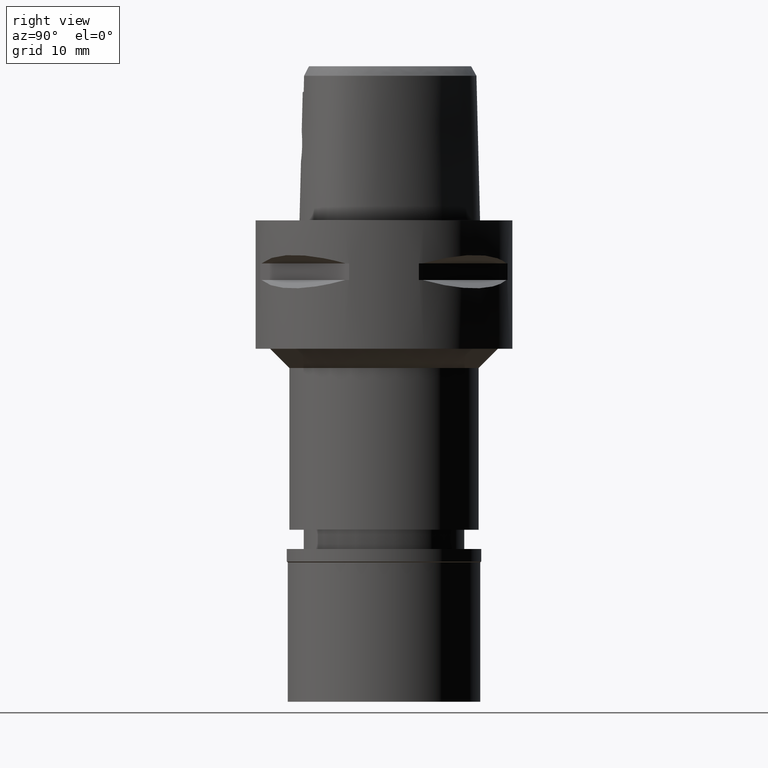
[diagram: clean part render]
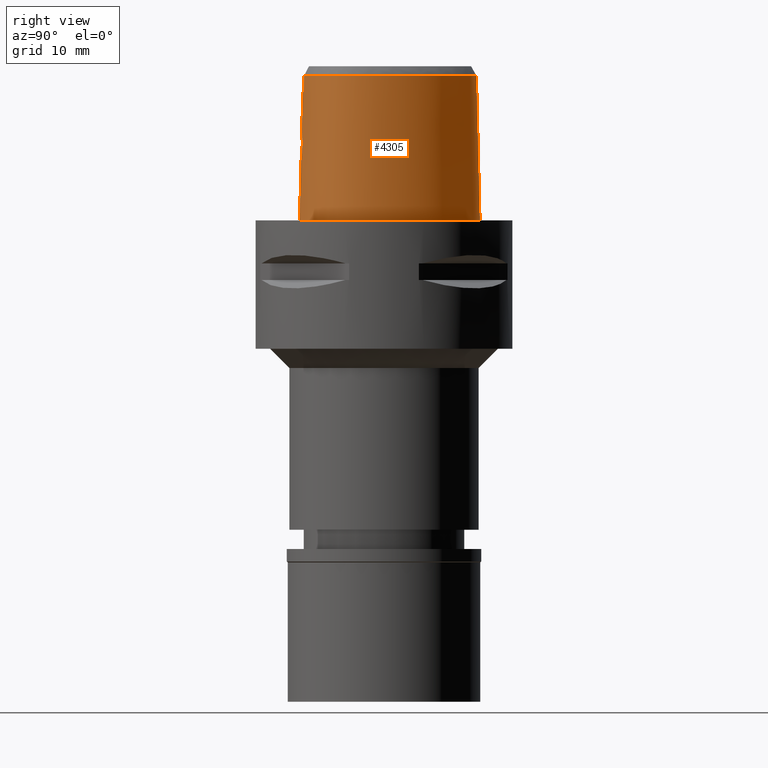
[diagram: same view with one face highlighted and labeled with its STEP entity id]
A machine part, right view. The second image highlights one B-rep face of the part: STEP entity #4305.
In plain terms, the highlighted face is a freeform B-spline surface patch.
Its self-contained STEP definition (entity closure, byte-faithful):
#26 = B_SPLINE_CURVE_WITH_KNOTS ( 'NONE', 3,
 ( #218, #4554, #2368, #3888 ),
 .UNSPECIFIED., .F., .F.,
 ( 4, 4 ),
 ( 0.0000000000000000000, 1.000000000000000000 ),
 .UNSPECIFIED. ) ;
#50 = CARTESIAN_POINT ( 'NONE',  ( 4.043386006612158745, -12.92392499374926551, 2.526500758007633324E-07 ) ) ;
#80 = FACE_OUTER_BOUND ( 'NONE', #2243, .T. ) ;
#118 = CARTESIAN_POINT ( 'NONE',  ( 1.591641127645536224, -12.86067053571080443, 9.839636682121154720 ) ) ;
#142 = CARTESIAN_POINT ( 'NONE',  ( 1.362992585940647317, -12.88053689247975520, 9.645493491656447205 ) ) ;
#154 = CARTESIAN_POINT ( 'NONE',  ( 1.394480076285999966E-10, 14.96299999995999919, 2.763345108291999988E-13 ) ) ;
#155 = CARTESIAN_POINT ( 'NONE',  ( -0.5714334898926000106, -12.77845914851000053, 15.16397847785000152 ) ) ;
#164 = CARTESIAN_POINT ( 'NONE',  ( 2.174655026127970903, -12.75097664368962036, 12.25065586503894011 ) ) ;
#178 = CARTESIAN_POINT ( 'NONE',  ( 9.167105020119999281, -10.63410057091000027, 15.16397847785000152 ) ) ;
#190 = CARTESIAN_POINT ( 'NONE',  ( 1.989864840159478510, -12.81604061845431275, 10.34408982141710176 ) ) ;
#201 = CARTESIAN_POINT ( 'NONE',  ( 11.17307789508999960, 6.450792918115999974, 15.16397847785000152 ) ) ;
#213 = CARTESIAN_POINT ( 'NONE',  ( 0.8145125421449325165, -12.91457943454070012, 9.348898823461938790 ) ) ;
#214 = ORIENTED_EDGE ( 'NONE', *, *, #877, .T. ) ;
#218 = CARTESIAN_POINT ( 'NONE',  ( 2.603594716343999860, -12.50959097760000027, 20.00000007790999845 ) ) ;
#221 = CARTESIAN_POINT ( 'NONE',  ( -6.592671780620999136E-11, 14.40001989798000182, 22.52071729252999788 ) ) ;
#224 = CARTESIAN_POINT ( 'NONE',  ( 13.18504591253999969, -5.572791088329999809, 22.97117531794000200 ) ) ;
#226 = CARTESIAN_POINT ( 'NONE',  ( 13.44334616193090604, -0.2854647381888218427, 22.52071729251869669 ) ) ;
#246 = CARTESIAN_POINT ( 'NONE',  ( 13.59718092439000081, -2.623279431512000048, 22.97117531794000200 ) ) ;
#248 = CARTESIAN_POINT ( 'NONE',  ( 1.745775296001682797, -12.61172358491222134, 20.00000039696022469 ) ) ;
#249 = B_SPLINE_CURVE_WITH_KNOTS ( 'NONE', 3,
 ( #1802, #1726, #339, #3166 ),
 .UNSPECIFIED., .F., .F.,
 ( 4, 4 ),
 ( 0.0000000000000000000, 1.000000000000000000 ),
 .UNSPECIFIED. ) ;
#270 = CARTESIAN_POINT ( 'NONE',  ( 12.81132626630000004, -7.396622668281000124, 7.356781637771000248 ) ) ;
#272 = CARTESIAN_POINT ( 'NONE',  ( 12.06912915025522715, -7.841969071234745847, 22.52071729251869669 ) ) ;
#293 = CARTESIAN_POINT ( 'NONE',  ( 3.534957314606000267, 13.66895477957999994, 22.97117531794000200 ) ) ;
#303 = CARTESIAN_POINT ( 'NONE',  ( 0.2807011223801613164, -12.81802318095999738, 13.79999999999999716 ) ) ;
#313 = CARTESIAN_POINT ( 'NONE',  ( 1.513572646535999988, 14.28153451507000149, 22.97117531794000200 ) ) ;
#339 = CARTESIAN_POINT ( 'NONE',  ( -4.220913122212817635E-09, -12.76635998233964564, 15.86666680636536064 ) ) ;
#362 = VERTEX_POINT ( 'NONE', #1311 ) ;
#410 = CARTESIAN_POINT ( 'NONE',  ( 11.50301489622497186, 6.641268746825714331, 2.526500758007633324E-07 ) ) ;
#455 = CARTESIAN_POINT ( 'NONE',  ( 9.170754357884419505, 9.963637495905267372, 2.526500758007633324E-07 ) ) ;
#459 = DIRECTION ( 'NONE',  ( 9.116520661892149065E-12, 0.02499051293209040084, -0.9996876883624159493 ) ) ;
#463 = CARTESIAN_POINT ( 'NONE',  ( 1.048704672019000084, -13.00466327240000020, 7.356781637771000248 ) ) ;
#476 = B_SPLINE_CURVE_WITH_KNOTS ( 'NONE', 3,
 ( #4414, #2203, #50, #808, #1127, #3023, #4081, #4483, #2616, #3668, #2253, #760, #2645, #1559, #1533, #410, #455, #1870, #3331, #4435, #4122, #1149 ),
 .UNSPECIFIED., .F., .F.,
 ( 4, 1, 1, 1, 1, 1, 1, 1, 1, 1, 1, 1, 1, 1, 1, 1, 1, 1, 1, 4 ),
 ( 0.0000000000000000000, 0.08333333333314001112, 0.1666666666663000063, 0.2083333333328000192, 0.2499999999994000077, 0.2916666666659999962, 0.3124999999992999489, 0.3333333333325000369, 0.3541666666659000207, 0.3749999999990999977, 0.4166666666657000140, 0.4583333333321999992, 0.4999999999987999599, 0.5833333333318999614, 0.6666666666650999939, 0.7499999999983000265, 0.8333333333314000280, 0.9166666666646000605, 0.9583333333311000457, 1.000000000000000000 ),
 .UNSPECIFIED. ) ;
#500 = CARTESIAN_POINT ( 'NONE',  ( 0.7506047745461016385, -12.91741682039676498, 9.325319817459758909 ) ) ;
#515 = VERTEX_POINT ( 'NONE', #684 ) ;
#519 = CARTESIAN_POINT ( 'NONE',  ( 1.493711519974093127, -12.86960986600499623, 9.750504243735724330 ) ) ;
#534 = CARTESIAN_POINT ( 'NONE',  ( 7.165542349958999857, -12.04243711645999859, -0.4504152023125000404 ) ) ;
#559 = CARTESIAN_POINT ( 'NONE',  ( 13.74837363990999961, -5.739794813218999536, -0.4504152023125000404 ) ) ;
#572 = CARTESIAN_POINT ( 'NONE',  ( 2.299158587325217606, -12.75906338818680652, 11.42842241198872344 ) ) ;
#584 = CARTESIAN_POINT ( 'NONE',  ( 3.976337289475999626, -12.54865315626000033, 15.16397847785000152 ) ) ;
#606 = CARTESIAN_POINT ( 'NONE',  ( 10.57640493824999872, -9.688930315331999665, 15.16397847785000152 ) ) ;
#608 = CARTESIAN_POINT ( 'NONE',  ( 6.968888527418841683, -11.49954675151481887, 22.52071729251869669 ) ) ;
#628 = CARTESIAN_POINT ( 'NONE',  ( 11.34294645296000148, 6.548859683045999525, 7.356781637771000248 ) ) ;
#638 = CARTESIAN_POINT ( 'NONE',  ( 1.408052784000375146, -12.78604258398209836, 13.32559425419504784 ) ) ;
#669 = ORIENTED_EDGE ( 'NONE', *, *, #1236, .F. ) ;
#671 = CARTESIAN_POINT ( 'NONE',  ( 2.568703243657000090, -12.45023755174000080, 22.52071758139999957 ) ) ;
#676 = CARTESIAN_POINT ( 'NONE',  ( -1.260417588442999891E-08, -12.66301535847000004, 19.99999996345999875 ) ) ;
#684 = CARTESIAN_POINT ( 'NONE',  ( 2.603594716343999860, -12.50959097760000027, 20.00000007790999845 ) ) ;
#741 = CARTESIAN_POINT ( 'NONE',  ( 1.553816202958000048, 14.47371249034000051, 15.16397847785000152 ) ) ;
#760 = CARTESIAN_POINT ( 'NONE',  ( 14.05597388958097227, -4.368733592854009196, 2.526500758007633324E-07 ) ) ;
#769 = CARTESIAN_POINT ( 'NONE',  ( -0.5664558463247999498, -12.58333782780000121, 22.97117531794000200 ) ) ;
#808 = CARTESIAN_POINT ( 'NONE',  ( 7.161686383303010217, -12.03179218152801155, 2.526500758007633324E-07 ) ) ;
#812 = LINE ( 'NONE', #4085, #1796 ) ;
#838 = CARTESIAN_POINT ( 'NONE',  ( -0.8491476913701000440, -12.57247826688000103, 22.97117531794000200 ) ) ;
#839 = EDGE_CURVE ( 'NONE', #3694, #2730, #3406, .T. ) ;
#850 = CARTESIAN_POINT ( 'NONE',  ( 1.107777221481571761, -12.89898952628355921, 9.478752576675020691 ) ) ;
#874 = CARTESIAN_POINT ( 'NONE',  ( 2.283291726770522168, -12.76615336162676329, 11.21397804798649389 ) ) ;
#877 = EDGE_CURVE ( 'NONE', #515, #3476, #1908, .T. ) ;
#880 = VERTEX_POINT ( 'NONE', #4653 ) ;
#886 = CARTESIAN_POINT ( 'NONE',  ( 6.379661312701999876, 12.67792013516999994, -0.4504152023125000404 ) ) ;
#895 = CARTESIAN_POINT ( 'NONE',  ( 2.080890816681221445, -12.75405392847548569, 12.48689062667896188 ) ) ;
#911 = CARTESIAN_POINT ( 'NONE',  ( 13.48500886106999985, -4.287290226620999789, 22.97117531794000200 ) ) ;
#923 = CARTESIAN_POINT ( 'NONE',  ( 1.607887411604793204, -12.85912041386440130, 9.855364509025404729 ) ) ;
#938 = CARTESIAN_POINT ( 'NONE',  ( 12.21811952688999980, -7.950323109321000281, 15.16397847785000152 ) ) ;
#940 = CARTESIAN_POINT ( 'NONE',  ( 11.42690036410471421, -8.639965949823194435, 22.52071729251869669 ) ) ;
#952 = CARTESIAN_POINT ( 'NONE',  ( 1.298081316895669524, -12.88549019284528008, 9.599832172041310230 ) ) ;
#963 = CARTESIAN_POINT ( 'NONE',  ( 13.79295346137999978, -2.621895082240000008, 15.16397847785000152 ) ) ;
#966 = CARTESIAN_POINT ( 'NONE',  ( 13.49620531830773196, -4.288887307215817124, 22.52071729251869669 ) ) ;
#974 = CARTESIAN_POINT ( 'NONE',  ( 0.0000000000000000000, -12.81802318095999915, 13.79999999999999893 ) ) ;
#984 = CARTESIAN_POINT ( 'NONE',  ( 4.010857421645999565, -12.74186242233999877, 7.356781637771000248 ) ) ;
#996 = CARTESIAN_POINT ( 'NONE',  ( 0.8913097515742632870, -12.80479973338801969, 13.62029918993368582 ) ) ;
#1019 = CARTESIAN_POINT ( 'NONE',  ( 0.9381876973383260765, -12.80340306008582196, 13.60008248094646888 ) ) ;
#1032 = CARTESIAN_POINT ( 'NONE',  ( 1.515894610912111418, 14.29262276006360288, 22.52071729251869669 ) ) ;
#1068 = CARTESIAN_POINT ( 'NONE',  ( 1.706514786404052630, -12.77195056588757538, 13.04216762706118793 ) ) ;
#1104 = CARTESIAN_POINT ( 'NONE',  ( -0.3063166189304000198, 14.96966816928999933, -0.4504152023125000404 ) ) ;
#1127 = CARTESIAN_POINT ( 'NONE',  ( 9.354901130079113614, -10.96475155699884496, 2.526500758007633324E-07 ) ) ;
#1133 = LINE ( 'NONE', #3950, #2016 ) ;
#1146 = ORIENTED_EDGE ( 'NONE', *, *, #2736, .T. ) ;
#1149 = CARTESIAN_POINT ( 'NONE',  ( 1.394480076285999966E-10, 14.96299999995999919, 2.763345108291999988E-13 ) ) ;
#1214 = CARTESIAN_POINT ( 'NONE',  ( 1.777128131591720228, -12.76853727841390196, 12.96066480105116270 ) ) ;
#1236 = EDGE_CURVE ( 'NONE', #3163, #880, #1812, .T. ) ;
#1241 = CARTESIAN_POINT ( 'NONE',  ( 0.1433742188724518862, -12.93301545397000396, 9.200000000000001066 ) ) ;
#1252 = CARTESIAN_POINT ( 'NONE',  ( 13.35152084735999978, -6.764911734801000165, -0.4504152023125000404 ) ) ;
#1267 = CARTESIAN_POINT ( 'NONE',  ( 2.300118713600481701, -12.75356737073905400, 11.64310838016456806 ) ) ;
#1278 = CARTESIAN_POINT ( 'NONE',  ( 12.98066718321000046, -7.494391692503000968, -0.4504152023125000404 ) ) ;
#1290 = CARTESIAN_POINT ( 'NONE',  ( 2.138891804679723396, -12.75204249368168163, 12.34575813156915736 ) ) ;
#1302 = CARTESIAN_POINT ( 'NONE',  ( 13.56059773079000053, -5.684126904923000545, 7.356781637771000248 ) ) ;
#1311 = CARTESIAN_POINT ( 'NONE',  ( -5.535627304009999517E-14, -13.16299999999999848, 2.757423918827000113E-13 ) ) ;
#1314 = CARTESIAN_POINT ( 'NONE',  ( 1.869424949172659778, -12.83134063688184057, 10.15811452068828658 ) ) ;
#1327 = CARTESIAN_POINT ( 'NONE',  ( 13.37282182166000055, -5.628458996625999688, 15.16397847785000152 ) ) ;
#1351 = CARTESIAN_POINT ( 'NONE',  ( 12.67101813038000024, 2.764037841997999845, 22.97117531794000200 ) ) ;
#1353 = CARTESIAN_POINT ( 'NONE',  ( 12.82590900890547481, -6.531187914406349826, 22.52071729251869669 ) ) ;
#1361 = CARTESIAN_POINT ( 'NONE',  ( 1.645449367504334903, -12.77488553661844328, 13.10705414946518665 ) ) ;
#1465 = CARTESIAN_POINT ( 'NONE',  ( 3.786921845533000042, 14.20422968569999966, -0.4504152023125000404 ) ) ;
#1489 = ORIENTED_EDGE ( 'NONE', *, *, #839, .T. ) ;
#1533 = CARTESIAN_POINT ( 'NONE',  ( 13.21414036448892482, 2.960287497841726623, 2.526500758007633324E-07 ) ) ;
#1559 = CARTESIAN_POINT ( 'NONE',  ( 14.00068087391712268, -0.1863062511124849441, 2.526500758007633324E-07 ) ) ;
#1567 = CARTESIAN_POINT ( 'NONE',  ( -0.8715805126474999165, -13.15757746668999850, -0.4504152023125000404 ) ) ;
#1576 = CARTESIAN_POINT ( 'NONE',  ( 1.900109215926363948, -12.76256732845277675, 12.79816543667886819 ) ) ;
#1601 = CARTESIAN_POINT ( 'NONE',  ( 2.186354490230978609, -12.78715814037339626, 10.76765892241432709 ) ) ;
#1627 = CARTESIAN_POINT ( 'NONE',  ( 2.151238930190031429, -12.75164808129624205, 12.31414270909390574 ) ) ;
#1638 = CARTESIAN_POINT ( 'NONE',  ( 9.263792127847999325, -10.80433672500000064, 7.356781637771000248 ) ) ;
#1650 = CARTESIAN_POINT ( 'NONE',  ( 1.727977423403443513, -12.84715031218480519, 9.980214359576857319 ) ) ;
#1661 = CARTESIAN_POINT ( 'NONE',  ( 11.84499494017000032, -9.036543426258999645, -0.4504152023125000404 ) ) ;
#1673 = CARTESIAN_POINT ( 'NONE',  ( 0.2902039409409304382, -12.93122636338095610, 9.213445385782277341 ) ) ;
#1684 = CARTESIAN_POINT ( 'NONE',  ( 13.87311581281999828, -4.342650423884999888, 7.356781637771000248 ) ) ;
#1709 = CARTESIAN_POINT ( 'NONE',  ( 13.81861785934999887, -0.2186980844013000080, 7.356781637771000248 ) ) ;
#1711 = CARTESIAN_POINT ( 'NONE',  ( 0.8728598500695162743, -12.66303358566543658, 20.00000039696022469 ) ) ;
#1726 = CARTESIAN_POINT ( 'NONE',  ( -4.211185285493583840E-09, -12.71469678372471535, 17.93333361273083426 ) ) ;
#1730 = CARTESIAN_POINT ( 'NONE',  ( 10.45540645526999946, -9.534715121864000054, 22.97117531794000200 ) ) ;
#1753 = CARTESIAN_POINT ( 'NONE',  ( 1.634303315801000078, 14.85806844088000034, -0.4504152023125000404 ) ) ;
#1756 = CARTESIAN_POINT ( 'NONE',  ( -6.592671780620999136E-11, 14.40001989798000182, 22.52071729252999788 ) ) ;
#1781 = CARTESIAN_POINT ( 'NONE',  ( -0.2906054694685000217, 14.57957077158000025, 15.16397847785000152 ) ) ;
#1783 = CARTESIAN_POINT ( 'NONE',  ( 13.60847656765998970, -2.623199557614578126, 22.52071729251869669 ) ) ;
#1794 = CARTESIAN_POINT ( 'NONE',  ( 0.9140504597120601149, -12.80412716134025430, 13.61058950016344582 ) ) ;
#1796 = VECTOR ( 'NONE', #459, 1000.000000000000227 ) ;
#1802 = CARTESIAN_POINT ( 'NONE',  ( -1.260417588442999891E-08, -12.66301535847000004, 19.99999996345999875 ) ) ;
#1810 = DIRECTION ( 'NONE',  ( 0.0000000000000000000, -0.02499051295424905769, -0.9996876883618621701 ) ) ;
#1812 = B_SPLINE_CURVE_WITH_KNOTS ( 'NONE', 3,
 ( #3779, #1241, #1673, #2681, #4525, #2748, #500, #213, #3111, #4211, #3498, #3883, #3135, #850, #952, #142, #2703, #519, #2000, #4188, #118, #923, #1956, #2390, #1650, #4596, #1314, #4549, #190, #4165, #3857, #3065, #2319, #1601, #3474, #1931, #874, #3804, #2772, #572, #1977, #1267, #4236, #2343, #3449, #4574, #164, #1627, #1290, #3087, #2027, #3400, #895, #4501, #1576, #3041, #1214, #4641, #1068, #3201, #4710, #1361, #2053, #3955, #638, #2535, #3156, #2869, #3928, #1019, #1794, #4283, #996, #3584, #303, #974 ),
 .UNSPECIFIED., .F., .F.,
 ( 4, 2, 2, 1, 1, 1, 2, 2, 2, 2, 2, 1, 2, 2, 2, 2, 2, 2, 2, 2, 2, 2, 2, 2, 2, 1, 1, 1, 2, 2, 2, 2, 2, 1, 2, 2, 2, 2, 1, 1, 2, 2, 4 ),
 ( 0.0000000000000000000, 0.06250000000000006939, 0.09375000000000002776, 0.1093750000000000139, 0.1171874999999999861, 0.1210937500000000000, 0.1230468749999998890, 0.1249999999999997780, 0.1875000000000026645, 0.2187500000000042744, 0.2343750000000052458, 0.2421875000000058009, 0.2460937500000060785, 0.2500000000000063283, 0.2812500000000062728, 0.3125000000000061617, 0.3437500000000061617, 0.3593750000000061617, 0.3750000000000062172, 0.4375000000000073275, 0.4687500000000074940, 0.4843750000000072720, 0.5000000000000069944, 0.5625000000000037748, 0.5937500000000024425, 0.6093750000000017764, 0.6171875000000017764, 0.6210937500000014433, 0.6230468750000016653, 0.6250000000000018874, 0.6875000000000023315, 0.7187500000000024425, 0.7343750000000025535, 0.7421875000000028866, 0.7460937500000031086, 0.7500000000000034417, 0.8125000000000024425, 0.8437500000000019984, 0.8593750000000018874, 0.8671875000000017764, 0.8710937500000016653, 0.8750000000000015543, 1.000000000000000000 ),
 .UNSPECIFIED. ) ;
#1824 = B_SPLINE_SURFACE_WITH_KNOTS ( 'NONE', 3, 3, ( 
 ( #1567, #4153, #4130, #838 ),
 ( #1878, #3005, #155, #769 ),
 ( #2980, #463, #2236, #1919 ),
 ( #2040, #984, #584, #3464 ),
 ( #534, #2426, #4271, #4252 ),
 ( #3893, #1638, #178, #2353 ),
 ( #3845, #4608, #606, #1730 ),
 ( #1661, #3123, #3144, #4561 ),
 ( #3192, #3508, #938, #2404 ),
 ( #1278, #270, #2737, #3917 ),
 ( #1252, #3872, #4586, #4200 ),
 ( #559, #1302, #1327, #224 ),
 ( #4224, #1684, #2063, #911 ),
 ( #3530, #2788, #963, #246 ),
 ( #3819, #1709, #3171, #4631 ),
 ( #3487, #2759, #2809, #1351 ),
 ( #2449, #628, #201, #3100 ),
 ( #2088, #2715, #3554, #4177 ),
 ( #886, #1988, #2376, #2012 ),
 ( #1465, #4040, #2133, #293 ),
 ( #1753, #1827, #741, #313 ),
 ( #2205, #2476, #2183, #3244 ),
 ( #1104, #3595, #1781, #2903 ),
 ( #3213, #3646, #3573, #2522 ) ),
 .UNSPECIFIED., .F., .F., .F.,
 ( 4, 1, 1, 1, 1, 1, 1, 1, 1, 1, 1, 1, 1, 1, 1, 1, 1, 1, 1, 1, 1, 4 ),
 ( 4, 4 ),
 ( -0.01796457239586999807, 0.0000000000000000000, 0.08333333333314001112, 0.1666666666663000063, 0.2083333333328000192, 0.2499999999994000077, 0.2916666666659999962, 0.3124999999992999489, 0.3333333333325000369, 0.3541666666659000207, 0.3749999999990999977, 0.4166666666657000140, 0.4583333333321999992, 0.4999999999987999599, 0.5833333333318999614, 0.6666666666650999939, 0.7499999999983000265, 0.8333333333314000280, 0.9166666666646000605, 0.9583333333311000457, 1.000000000000000000, 1.011713651438000072 ),
 ( -3.224084078184999591E-08, 1.000001644282999980 ),
 .UNSPECIFIED. ) ;
#1827 = CARTESIAN_POINT ( 'NONE',  ( 1.594059759380000107, 14.66589046561000131, 7.356781637771000248 ) ) ;
#1863 = ORIENTED_EDGE ( 'NONE', *, *, #2513, .T. ) ;
#1870 = CARTESIAN_POINT ( 'NONE',  ( 6.372642517151585473, 12.66899061998716292, 2.526500758007633324E-07 ) ) ;
#1878 = CARTESIAN_POINT ( 'NONE',  ( -0.5813887770280999900, -13.16870178992999918, -0.4504152023125000404 ) ) ;
#1883 = ORIENTED_EDGE ( 'NONE', *, *, #3939, .T. ) ;
#1908 = B_SPLINE_CURVE_WITH_KNOTS ( 'NONE', 3,
 ( #3895, #248, #1711, #676 ),
 .UNSPECIFIED., .F., .F.,
 ( 4, 4 ),
 ( 0.0000000000000000000, 1.000000000000000000 ),
 .UNSPECIFIED. ) ;
#1919 = CARTESIAN_POINT ( 'NONE',  ( 1.030579252224999909, -12.61390766258999996, 22.97117531794000200 ) ) ;
#1931 = CARTESIAN_POINT ( 'NONE',  ( 2.273024517919945975, -12.76906917249595885, 11.14078746314901203 ) ) ;
#1956 = CARTESIAN_POINT ( 'NONE',  ( 1.617438359909708856, -12.85819787466013864, 9.864768670370320791 ) ) ;
#1977 = CARTESIAN_POINT ( 'NONE',  ( 2.299969345384927699, -12.75813322093607027, 11.46185367828802804 ) ) ;
#1988 = CARTESIAN_POINT ( 'NONE',  ( 6.258002258070000323, 12.52314195882000014, 7.356781637771000248 ) ) ;
#2000 = CARTESIAN_POINT ( 'NONE',  ( 1.542743282436318752, -12.86521460690171814, 9.794004530773863237 ) ) ;
#2012 = CARTESIAN_POINT ( 'NONE',  ( 6.014684148805999442, 12.21358560612000055, 22.97117531794000200 ) ) ;
#2016 = VECTOR ( 'NONE', #1810, 1000.000000000000000 ) ;
#2027 = CARTESIAN_POINT ( 'NONE',  ( 2.129813370590927679, -12.75234797374024609, 12.36828487053688264 ) ) ;
#2040 = CARTESIAN_POINT ( 'NONE',  ( 4.045377553815999505, -12.93507168842999988, -0.4504152023125000404 ) ) ;
#2053 = CARTESIAN_POINT ( 'NONE',  ( 1.636146738088311459, -12.77533106805134011, 13.11651252606773888 ) ) ;
#2063 = CARTESIAN_POINT ( 'NONE',  ( 13.67906233694000129, -4.314970325253000283, 15.16397847785000152 ) ) ;
#2088 = CARTESIAN_POINT ( 'NONE',  ( 9.179411190338999660, 9.970937545962000215, -0.4504152023125000404 ) ) ;
#2098 = CARTESIAN_POINT ( 'NONE',  ( -2.215291853635999751E-14, -12.93301545397000041, 9.199999999999999289 ) ) ;
#2112 = CARTESIAN_POINT ( 'NONE',  ( 3.014424016408591811, -12.39773933397746042, 22.52071729251869669 ) ) ;
#2133 = CARTESIAN_POINT ( 'NONE',  ( 3.618945491580999985, 13.84737974827999984, 15.16397847785000152 ) ) ;
#2183 = CARTESIAN_POINT ( 'NONE',  ( 0.3713127254062999483, 14.59941804326000003, 15.16397847785000152 ) ) ;
#2203 = CARTESIAN_POINT ( 'NONE',  ( 1.347795335536480454, -13.16299999368396634, 2.526500758007633324E-07 ) ) ;
#2205 = CARTESIAN_POINT ( 'NONE',  ( 0.3916487676422000241, 14.99059189962000005, -0.4504152023125000404 ) ) ;
#2220 = VERTEX_POINT ( 'NONE', #154 ) ;
#2236 = CARTESIAN_POINT ( 'NONE',  ( 1.039641962122000107, -12.80928546750000052, 15.16397847785000152 ) ) ;
#2243 = EDGE_LOOP ( 'NONE', ( #4142, #1489, #3933, #214, #1146, #669, #1883, #1863 ) ) ;
#2253 = CARTESIAN_POINT ( 'NONE',  ( 13.73754040830718814, -5.736583201323520065, 2.526500758007633324E-07 ) ) ;
#2319 = CARTESIAN_POINT ( 'NONE',  ( 2.108316059763356787, -12.79932254745118314, 10.57985993983337281 ) ) ;
#2343 = CARTESIAN_POINT ( 'NONE',  ( 2.243503838786559346, -12.75015969206865130, 12.01219160939755604 ) ) ;
#2353 = CARTESIAN_POINT ( 'NONE',  ( 9.070417912391000925, -10.46386441681999990, 22.97117531794000200 ) ) ;
#2368 = CARTESIAN_POINT ( 'NONE',  ( 2.580559080356283008, -12.46988838676011468, 21.68047841357000038 ) ) ;
#2376 = CARTESIAN_POINT ( 'NONE',  ( 6.136343203437999883, 12.36836378247000034, 15.16397847785000152 ) ) ;
#2390 = CARTESIAN_POINT ( 'NONE',  ( 1.677338744211443133, -12.85235830105390065, 9.924503536723275232 ) ) ;
#2404 = CARTESIAN_POINT ( 'NONE',  ( 12.06000637009999998, -7.835334481197999246, 22.97117531794000200 ) ) ;
#2426 = CARTESIAN_POINT ( 'NONE',  ( 7.098705632079000516, -11.85792501447000014, 7.356781637771000248 ) ) ;
#2428 = CARTESIAN_POINT ( 'NONE',  ( 9.075996545096613133, -10.47368666716124075, 22.52071729251869669 ) ) ;
#2449 = CARTESIAN_POINT ( 'NONE',  ( 11.51281501082999981, 6.646926447975999963, -0.4504152023125000404 ) ) ;
#2476 = CARTESIAN_POINT ( 'NONE',  ( 0.3814807465241999984, 14.79500497143999915, 7.356781637771000248 ) ) ;
#2499 = CARTESIAN_POINT ( 'NONE',  ( 2.568703243657000090, -12.45023755174000080, 22.52071758139999957 ) ) ;
#2513 = EDGE_CURVE ( 'NONE', #362, #2220, #476, .T. ) ;
#2522 = CARTESIAN_POINT ( 'NONE',  ( -0.4238406509364999741, 14.37596235842000070, 22.97117531794000200 ) ) ;
#2535 = CARTESIAN_POINT ( 'NONE',  ( 1.209086969383211141, -12.79412523546007563, 13.45817784083520507 ) ) ;
#2536 = EDGE_CURVE ( 'NONE', #515, #2730, #26, .T. ) ;
#2616 = CARTESIAN_POINT ( 'NONE',  ( 12.97089750944665099, -7.488751168710887640, 2.526500758007633324E-07 ) ) ;
#2645 = CARTESIAN_POINT ( 'NONE',  ( 14.17320395958284251, -2.619206250044953332, 2.526500758007633324E-07 ) ) ;
#2681 = CARTESIAN_POINT ( 'NONE',  ( 0.5113403790312409658, -12.92585909161381963, 9.256304699929891910 ) ) ;
#2703 = CARTESIAN_POINT ( 'NONE',  ( 1.460959802937717100, -12.87242665810233078, 9.723111638592726536 ) ) ;
#2715 = CARTESIAN_POINT ( 'NONE',  ( 9.029359511961001061, 9.844403415955001790, 7.356781637771000248 ) ) ;
#2730 = VERTEX_POINT ( 'NONE', #671 ) ;
#2736 = EDGE_CURVE ( 'NONE', #3476, #880, #249, .T. ) ;
#2737 = CARTESIAN_POINT ( 'NONE',  ( 12.64198534938000051, -7.298853644058000079, 15.16397847785000152 ) ) ;
#2748 = CARTESIAN_POINT ( 'NONE',  ( 0.6955382435542086794, -12.91959727455216900, 9.307353099921993334 ) ) ;
#2759 = CARTESIAN_POINT ( 'NONE',  ( 13.04019926089999970, 2.897436302340000047, 7.356781637771000248 ) ) ;
#2772 = CARTESIAN_POINT ( 'NONE',  ( 2.295866016301516765, -12.76119921827123527, 11.35768768159920761 ) ) ;
#2788 = CARTESIAN_POINT ( 'NONE',  ( 13.98872599837000053, -2.620510732967999967, 7.356781637771000248 ) ) ;
#2790 = CARTESIAN_POINT ( 'NONE',  ( 10.46238780066687468, -9.543612998139240133, 22.52071729251869669 ) ) ;
#2809 = CARTESIAN_POINT ( 'NONE',  ( 12.85560869564000086, 2.830737072168999724, 15.16397847785000152 ) ) ;
#2833 = CARTESIAN_POINT ( 'NONE',  ( 12.48241502960195781, -7.206725676734285102, 22.52071729251869669 ) ) ;
#2869 = CARTESIAN_POINT ( 'NONE',  ( 1.043973006521108360, -12.80001853782782462, 13.54975762555262264 ) ) ;
#2903 = CARTESIAN_POINT ( 'NONE',  ( -0.2827498947375000071, 14.38452207273000027, 22.97117531794000200 ) ) ;
#2980 = CARTESIAN_POINT ( 'NONE',  ( 1.057767381915999838, -13.20004107730999898, -0.4504152023125000404 ) ) ;
#3005 = CARTESIAN_POINT ( 'NONE',  ( -0.5764111334603999603, -12.97358046921999986, 7.356781637771000248 ) ) ;
#3023 = CARTESIAN_POINT ( 'NONE',  ( 10.81142121856454352, -9.988463666884033643, 2.526500758007633324E-07 ) ) ;
#3041 = CARTESIAN_POINT ( 'NONE',  ( 1.854517083051412163, -12.76478398343997256, 12.86296390897502206 ) ) ;
#3065 = CARTESIAN_POINT ( 'NONE',  ( 2.093435941504518283, -12.80154818977980469, 10.54659307499018794 ) ) ;
#3087 = CARTESIAN_POINT ( 'NONE',  ( 2.133463040823848189, -12.75222410475733170, 12.35927822234116924 ) ) ;
#3100 = CARTESIAN_POINT ( 'NONE',  ( 11.00320933721999950, 6.352726153185999536, 22.97117531794000200 ) ) ;
#3111 = CARTESIAN_POINT ( 'NONE',  ( 0.8463630567563916740, -12.91308736094397425, 9.361346884265564938 ) ) ;
#3123 = CARTESIAN_POINT ( 'NONE',  ( 11.70289717230000015, -8.901758673197001315, 7.356781637771000248 ) ) ;
#3135 = CARTESIAN_POINT ( 'NONE',  ( 0.9870234129898216580, -12.90617499169803040, 9.419215489519116247 ) ) ;
#3144 = CARTESIAN_POINT ( 'NONE',  ( 11.56079940442000087, -8.766973920134001119, 15.16397847785000152 ) ) ;
#3156 = CARTESIAN_POINT ( 'NONE',  ( 1.142660624072548092, -12.79660889248676092, 13.49746603115485577 ) ) ;
#3163 = VERTEX_POINT ( 'NONE', #2098 ) ;
#3166 = CARTESIAN_POINT ( 'NONE',  ( 0.0000000000000000000, -12.81802318095999915, 13.79999999999999893 ) ) ;
#3171 = CARTESIAN_POINT ( 'NONE',  ( 13.62540812296999881, -0.2530730923373000207, 15.16397847785000152 ) ) ;
#3173 = CARTESIAN_POINT ( 'NONE',  ( 4.736458210706109284, -12.13940339171352356, 22.52071729251869669 ) ) ;
#3192 = CARTESIAN_POINT ( 'NONE',  ( 12.53434584047000122, -8.180300365564999510, -0.4504152023125000404 ) ) ;
#3201 = CARTESIAN_POINT ( 'NONE',  ( 1.684262171806062414, -12.77302273728515125, 13.06656659278256960 ) ) ;
#3213 = CARTESIAN_POINT ( 'NONE',  ( -0.4594072134605000635, 14.96036498131000059, -0.4504152023125000404 ) ) ;
#3215 = CARTESIAN_POINT ( 'NONE',  ( 6.021703607729175900, 12.22251596526490047, 22.52071729251869669 ) ) ;
#3244 = CARTESIAN_POINT ( 'NONE',  ( 0.3611447042884000092, 14.40383111507999914, 22.97117531794000200 ) ) ;
#3331 = CARTESIAN_POINT ( 'NONE',  ( 3.782076371066429576, 14.19393593173115242, 2.526500758007633324E-07 ) ) ;
#3400 = CARTESIAN_POINT ( 'NONE',  ( 2.127531297605238070, -12.75242672595457805, 12.37385599951361215 ) ) ;
#3406 = B_SPLINE_CURVE_WITH_KNOTS ( 'NONE', 3,
 ( #1756, #4610, #1032, #3944, #3215, #4322, #4699, #3967, #226, #1783, #966, #3532, #1353, #2833, #272, #940, #2790, #2428, #608, #3173, #2112, #2499 ),
 .UNSPECIFIED., .F., .F.,
 ( 4, 1, 1, 1, 1, 1, 1, 1, 1, 1, 1, 1, 1, 1, 1, 1, 1, 1, 1, 4 ),
 ( 0.0000000000000000000, 0.04407253041122530940, 0.08814506081991206610, 0.1762901216374972158, 0.2644351824549765473, 0.3525802432725616553, 0.4407253040901468188, 0.5288703649076261781, 0.5729428953164187321, 0.6170154257251054819, 0.6610879561338979249, 0.6831242213381883976, 0.7051604865426904789, 0.7271967517469811737, 0.7492330169513773397, 0.7933055473601697827, 0.8373780777689623367, 0.8814506081776490864, 0.9695956689951920060, 1.000000000000000000 ),
 .UNSPECIFIED. ) ;
#3449 = CARTESIAN_POINT ( 'NONE',  ( 2.225429295877805913, -12.75012210877847885, 12.08593180704468928 ) ) ;
#3464 = CARTESIAN_POINT ( 'NONE',  ( 3.941817157306000130, -12.35544389018000011, 22.97117531794000200 ) ) ;
#3474 = CARTESIAN_POINT ( 'NONE',  ( 2.230462555877945174, -12.77898657628070112, 10.91885181785458236 ) ) ;
#3476 = VERTEX_POINT ( 'NONE', #3765 ) ;
#3487 = CARTESIAN_POINT ( 'NONE',  ( 13.22478982614999943, 2.964135532510000282, -0.4504152023125000404 ) ) ;
#3498 = CARTESIAN_POINT ( 'NONE',  ( 0.8690674297352856126, -12.91199189238994194, 9.370505741517995091 ) ) ;
#3508 = CARTESIAN_POINT ( 'NONE',  ( 12.37623268368000140, -8.065311737442998563, 7.356781637771000248 ) ) ;
#3530 = CARTESIAN_POINT ( 'NONE',  ( 14.18449853536000127, -2.619126383696000371, -0.4504152023125000404 ) ) ;
#3532 = CARTESIAN_POINT ( 'NONE',  ( 13.19588016803226793, -5.576003003766997423, 22.52071729251869669 ) ) ;
#3544 = EDGE_CURVE ( 'NONE', #3694, #2220, #812, .T. ) ;
#3554 = CARTESIAN_POINT ( 'NONE',  ( 8.879307833582000598, 9.717869285946999725, 15.16397847785000152 ) ) ;
#3573 = CARTESIAN_POINT ( 'NONE',  ( -0.4356961717778999876, 14.57076323271999918, 15.16397847785000152 ) ) ;
#3584 = CARTESIAN_POINT ( 'NONE',  ( 0.5839158949211584737, -12.81370532052833155, 13.74793500496120124 ) ) ;
#3595 = CARTESIAN_POINT ( 'NONE',  ( -0.2984610441994999808, 14.77461947044000112, 7.356781637771000248 ) ) ;
#3646 = CARTESIAN_POINT ( 'NONE',  ( -0.4475516926192000255, 14.76556410701999944, 7.356781637771000248 ) ) ;
#3668 = CARTESIAN_POINT ( 'NONE',  ( 13.34121470788652530, -6.760328903679308610, 2.526500758007633324E-07 ) ) ;
#3694 = VERTEX_POINT ( 'NONE', #221 ) ;
#3765 = CARTESIAN_POINT ( 'NONE',  ( -1.260417588442999891E-08, -12.66301535847000004, 19.99999996345999875 ) ) ;
#3779 = CARTESIAN_POINT ( 'NONE',  ( -2.215291853635999751E-14, -12.93301545397000041, 9.199999999999999289 ) ) ;
#3804 = CARTESIAN_POINT ( 'NONE',  ( 2.293385494867744789, -12.76236463091154683, 11.32198205547385506 ) ) ;
#3819 = CARTESIAN_POINT ( 'NONE',  ( 14.01182759572999892, -0.1843230764653000231, -0.4504152023125000404 ) ) ;
#3845 = CARTESIAN_POINT ( 'NONE',  ( 10.81840190419000081, -9.997360702267000576, -0.4504152023125000404 ) ) ;
#3857 = CARTESIAN_POINT ( 'NONE',  ( 2.060625410429664406, -12.80630362429435820, 10.47760979869173781 ) ) ;
#3872 = CARTESIAN_POINT ( 'NONE',  ( 13.17288119668999791, -6.685476039916000701, 7.356781637771000248 ) ) ;
#3883 = CARTESIAN_POINT ( 'NONE',  ( 0.8747345760824792871, -12.91171422237656863, 9.372829819806538509 ) ) ;
#3888 = CARTESIAN_POINT ( 'NONE',  ( 2.568703243657000090, -12.45023755174000080, 22.52071758139999957 ) ) ;
#3893 = CARTESIAN_POINT ( 'NONE',  ( 9.360479235576999457, -10.97457287908999923, -0.4504152023125000404 ) ) ;
#3895 = CARTESIAN_POINT ( 'NONE',  ( 2.603594716343999860, -12.50959097760000027, 20.00000007790999845 ) ) ;
#3917 = CARTESIAN_POINT ( 'NONE',  ( 12.47264443247000010, -7.201084619835000034, 22.97117531794000200 ) ) ;
#3928 = CARTESIAN_POINT ( 'NONE',  ( 0.9948637765814553058, -12.80164440044861252, 13.57424493532782073 ) ) ;
#3933 = ORIENTED_EDGE ( 'NONE', *, *, #2536, .F. ) ;
#3939 = EDGE_CURVE ( 'NONE', #3163, #362, #1133, .T. ) ;
#3944 = CARTESIAN_POINT ( 'NONE',  ( 3.539803247036527711, 13.67924950644968085, 22.52071729251869669 ) ) ;
#3950 = CARTESIAN_POINT ( 'NONE',  ( -2.215291853635999751E-14, -12.93301545397000041, 9.199999999999999289 ) ) ;
#3955 = CARTESIAN_POINT ( 'NONE',  ( 1.523028941585233609, -12.78074262657525928, 13.23006938842576652 ) ) ;
#3967 = CARTESIAN_POINT ( 'NONE',  ( 12.68166859856231099, 2.767886240358556904, 22.52071729251869669 ) ) ;
#4040 = CARTESIAN_POINT ( 'NONE',  ( 3.702933668556999791, 14.02580471699000064, 7.356781637771000248 ) ) ;
#4081 = CARTESIAN_POINT ( 'NONE',  ( 11.83679698742519193, -9.028767378451322045, 2.526500758007633324E-07 ) ) ;
#4085 = CARTESIAN_POINT ( 'NONE',  ( -6.592671780620999136E-11, 14.40001989798000182, 22.52071729252999788 ) ) ;
#4122 = CARTESIAN_POINT ( 'NONE',  ( 0.5439938568965583254, 14.96299999369042233, 2.526500758007633324E-07 ) ) ;
#4130 = CARTESIAN_POINT ( 'NONE',  ( -0.8566252984625999378, -12.76751133347999989, 15.16397847785000152 ) ) ;
#4142 = ORIENTED_EDGE ( 'NONE', *, *, #3544, .F. ) ;
#4153 = CARTESIAN_POINT ( 'NONE',  ( -0.8641029055549999116, -12.96254440008999964, 7.356781637771000248 ) ) ;
#4165 = CARTESIAN_POINT ( 'NONE',  ( 2.043463385705228230, -12.80871364514175781, 10.44374245704669946 ) ) ;
#4177 = CARTESIAN_POINT ( 'NONE',  ( 8.729256155204000223, 9.591335155939999524, 22.97117531794000200 ) ) ;
#4188 = CARTESIAN_POINT ( 'NONE',  ( 1.567234804671707282, -12.86297445961074892, 9.816357320232405925 ) ) ;
#4200 = CARTESIAN_POINT ( 'NONE',  ( 12.81560189536000038, -6.526604650144000708, 22.97117531794000200 ) ) ;
#4211 = CARTESIAN_POINT ( 'NONE',  ( 0.8599890503359368665, -12.91243217640209018, 9.366823301356212994 ) ) ;
#4224 = CARTESIAN_POINT ( 'NONE',  ( 14.06716928870000061, -4.370330522516999494, -0.4504152023125000404 ) ) ;
#4236 = CARTESIAN_POINT ( 'NONE',  ( 2.286485425363378177, -12.75134569601234880, 11.79083204285286435 ) ) ;
#4252 = CARTESIAN_POINT ( 'NONE',  ( 6.965032196320999347, -11.48890081048999967, 22.97117531794000200 ) ) ;
#4271 = CARTESIAN_POINT ( 'NONE',  ( 7.031868914199999487, -11.67341291247999990, 15.16397847785000152 ) ) ;
#4283 = CARTESIAN_POINT ( 'NONE',  ( 0.8979950358144439537, -12.80460331550573372, 13.61747047128233312 ) ) ;
#4305 = ADVANCED_FACE ( 'NONE', ( #80 ), #1824, .T. ) ;
#4322 = CARTESIAN_POINT ( 'NONE',  ( 8.737913805848368298, 9.598635895951916908, 22.52071729251869669 ) ) ;
#4414 = CARTESIAN_POINT ( 'NONE',  ( -5.535627304009999517E-14, -13.16299999999999848, 2.757423918827000113E-13 ) ) ;
#4435 = CARTESIAN_POINT ( 'NONE',  ( 1.631981570853786812, 14.84698124378151540, 2.526500758007633324E-07 ) ) ;
#4483 = CARTESIAN_POINT ( 'NONE',  ( 12.52522392246154403, -8.173666402529104147, 2.526500758007633324E-07 ) ) ;
#4501 = CARTESIAN_POINT ( 'NONE',  ( 2.021153119201027692, -12.75677398847741273, 12.60794142556711961 ) ) ;
#4525 = CARTESIAN_POINT ( 'NONE',  ( 0.5851900645696058723, -12.92362272837751469, 9.274365687045218465 ) ) ;
#4549 = CARTESIAN_POINT ( 'NONE',  ( 1.951316193587585124, -12.82105448168983131, 10.28025765310058759 ) ) ;
#4554 = CARTESIAN_POINT ( 'NONE',  ( 2.592189410844740749, -12.48967527515265097, 20.84023924574000119 ) ) ;
#4561 = CARTESIAN_POINT ( 'NONE',  ( 11.41870163653999981, -8.632189167071999236, 22.97117531794000200 ) ) ;
#4574 = CARTESIAN_POINT ( 'NONE',  ( 2.192541761835642422, -12.75060236087980847, 12.19586171828252930 ) ) ;
#4586 = CARTESIAN_POINT ( 'NONE',  ( 12.99424154602999870, -6.606040345030000260, 15.16397847785000152 ) ) ;
#4596 = CARTESIAN_POINT ( 'NONE',  ( 1.823556130522963725, -12.83669982089731398, 10.09632717221551879 ) ) ;
#4608 = CARTESIAN_POINT ( 'NONE',  ( 10.69740342121999888, -9.843145508799000964, 7.356781637771000248 ) ) ;
#4610 = CARTESIAN_POINT ( 'NONE',  ( 0.5039711947944947035, 14.40001989752791367, 22.52071729251869669 ) ) ;
#4631 = CARTESIAN_POINT ( 'NONE',  ( 13.43219838659999965, -0.2874481002733000334, 22.97117531794000200 ) ) ;
#4641 = CARTESIAN_POINT ( 'NONE',  ( 1.749832844621748595, -12.76985976215405572, 12.99331170241439359 ) ) ;
#4653 = CARTESIAN_POINT ( 'NONE',  ( 0.0000000000000000000, -12.81802318095999915, 13.79999999999999893 ) ) ;
#4699 = CARTESIAN_POINT ( 'NONE',  ( 11.01301037807071559, 6.358384389066897846, 22.52071729251869669 ) ) ;
#4710 = CARTESIAN_POINT ( 'NONE',  ( 1.661097454703123422, -12.77413506297896362, 13.09087457277828115 ) ) ;